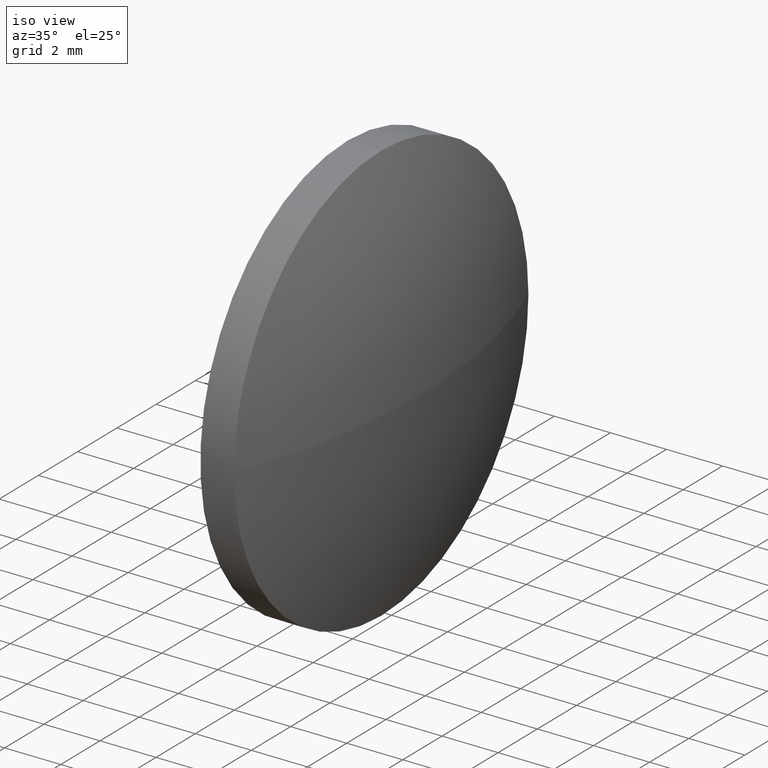
[diagram: clean part render]
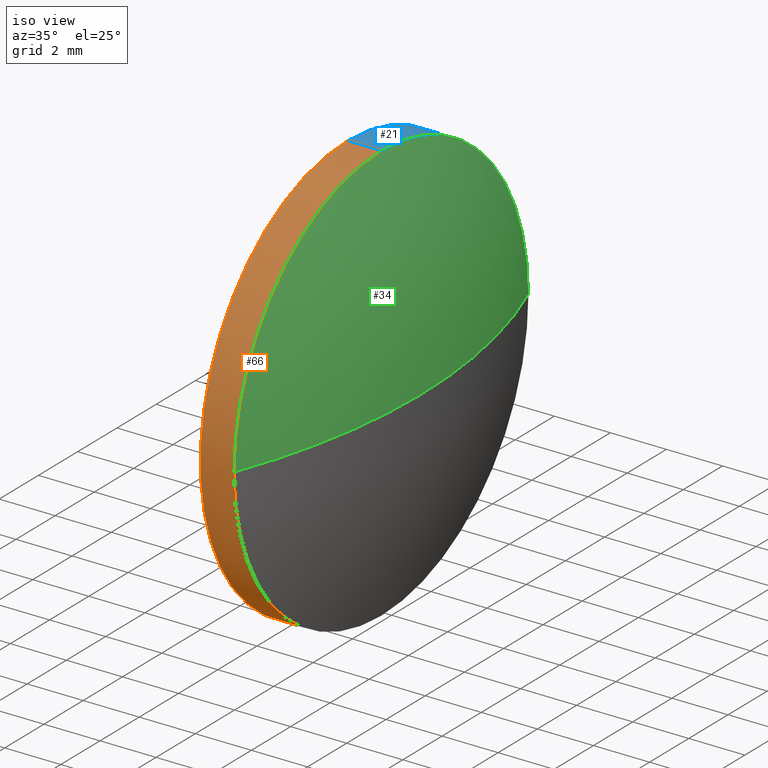
[diagram: same view with three faces highlighted in distinct colors, each labeled with its STEP entity id]
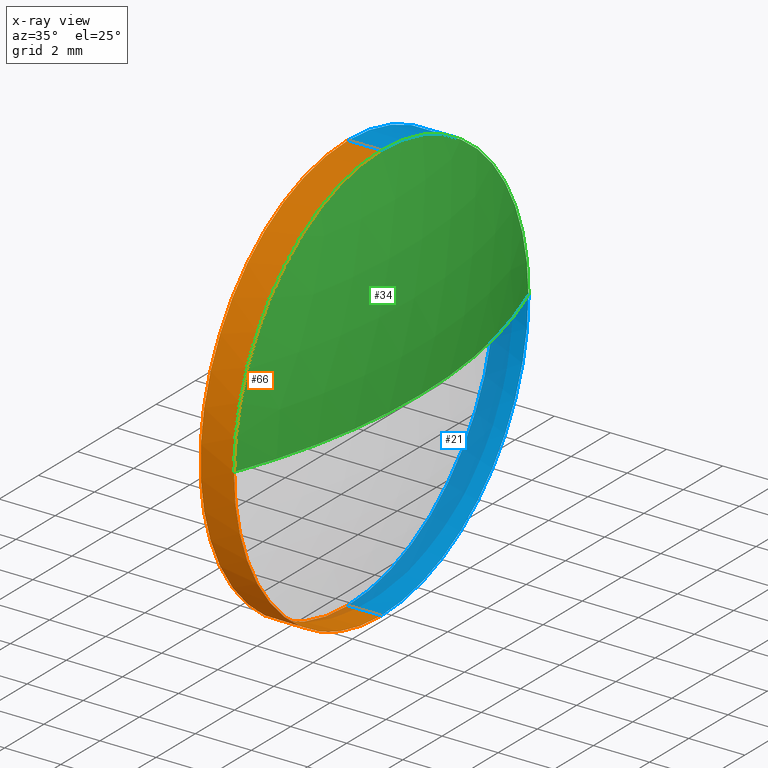
[diagram: x-ray of the same camera — body ghosted, the three highlighted faces saturated]
A machine part, iso view with three faces highlighted in distinct colors.
The next image is the same camera in x-ray (body ghosted, the three faces saturated) — at least one of them is partly hidden behind the body in this view.
Their STEP definitions:

[orange] entity #66 — the highlighted cylindrical surface (partial cylindrical patch) has radius 7.5 mm, axis along (-1, -0, -0).
#1 = AXIS2_PLACEMENT_3D ( 'NONE', #87, #11, #106 ) ;
#10 = AXIS2_PLACEMENT_3D ( 'NONE', #27, #132, #72 ) ;
#11 = DIRECTION ( 'NONE',  ( -1.000000000000000000, -0.0000000000000000000, -0.0000000000000000000 ) ) ;
#17 = EDGE_LOOP ( 'NONE', ( #97, #110, #148, #67, #95 ) ) ;
#23 = CARTESIAN_POINT ( 'NONE',  ( 366.1699605554130700, 373.7277991723684600, -9.184850993605163700E-016 ) ) ;
#25 = EDGE_CURVE ( 'NONE', #80, #117, #62, .T. ) ;
#26 = CARTESIAN_POINT ( 'NONE',  ( 362.1291484246796100, 381.2277991723684600, 0.0000000000000000000 ) ) ;
#27 = CARTESIAN_POINT ( 'NONE',  ( 366.1699605554130700, 381.2277991723684600, 0.0000000000000000000 ) ) ;
#32 = DIRECTION ( 'NONE',  ( -1.000000000000000000, -0.0000000000000000000, -0.0000000000000000000 ) ) ;
#33 = EDGE_CURVE ( 'NONE', #117, #165, #84, .T. ) ;
#35 = VECTOR ( 'NONE', #32, 1000.000000000000000 ) ;
#37 = CYLINDRICAL_SURFACE ( 'NONE', #162, 7.500000000000007100 ) ;
#39 = DIRECTION ( 'NONE',  ( -1.000000000000000000, -0.0000000000000000000, -0.0000000000000000000 ) ) ;
#44 = EDGE_CURVE ( 'NONE', #47, #165, #45, .T. ) ;
#45 = LINE ( 'NONE', #58, #164 ) ;
#47 = VERTEX_POINT ( 'NONE', #145 ) ;
#54 = VERTEX_POINT ( 'NONE', #23 ) ;
#55 = DIRECTION ( 'NONE',  ( -1.000000000000000000, -0.0000000000000000000, -0.0000000000000000000 ) ) ;
#57 = AXIS2_PLACEMENT_3D ( 'NONE', #185, #55, #173 ) ;
#58 = CARTESIAN_POINT ( 'NONE',  ( 362.1291484246796100, 381.2277991723684600, 7.500000000000007100 ) ) ;
#62 = LINE ( 'NONE', #82, #35 ) ;
#66 = ADVANCED_FACE ( 'NONE', ( #184 ), #37, .T. ) ;
#67 = ORIENTED_EDGE ( 'NONE', *, *, #44, .T. ) ;
#68 = DIRECTION ( 'NONE',  ( -1.000000000000000000, -0.0000000000000000000, -0.0000000000000000000 ) ) ;
#71 = CARTESIAN_POINT ( 'NONE',  ( 366.1699605554130700, 381.2277991723684600, -7.500000000000007100 ) ) ;
#72 = DIRECTION ( 'NONE',  ( 0.0000000000000000000, 0.0000000000000000000, 1.000000000000000000 ) ) ;
#80 = VERTEX_POINT ( 'NONE', #71 ) ;
#82 = CARTESIAN_POINT ( 'NONE',  ( 362.1291484246796100, 381.2277991723684600, -7.500000000000007100 ) ) ;
#84 = CIRCLE ( 'NONE', #57, 7.500000000000007100 ) ;
#87 = CARTESIAN_POINT ( 'NONE',  ( 366.1699605554130700, 381.2277991723684600, 0.0000000000000000000 ) ) ;
#95 = ORIENTED_EDGE ( 'NONE', *, *, #33, .F. ) ;
#97 = ORIENTED_EDGE ( 'NONE', *, *, #25, .F. ) ;
#106 = DIRECTION ( 'NONE',  ( 0.0000000000000000000, 0.0000000000000000000, 1.000000000000000000 ) ) ;
#110 = ORIENTED_EDGE ( 'NONE', *, *, #123, .T. ) ;
#114 = CIRCLE ( 'NONE', #10, 7.500000000000007100 ) ;
#117 = VERTEX_POINT ( 'NONE', #182 ) ;
#123 = EDGE_CURVE ( 'NONE', #80, #54, #128, .T. ) ;
#125 = EDGE_CURVE ( 'NONE', #54, #47, #114, .T. ) ;
#128 = CIRCLE ( 'NONE', #1, 7.500000000000007100 ) ;
#132 = DIRECTION ( 'NONE',  ( -1.000000000000000000, -0.0000000000000000000, -0.0000000000000000000 ) ) ;
#145 = CARTESIAN_POINT ( 'NONE',  ( 366.1699605554130700, 381.2277991723684600, 7.500000000000007100 ) ) ;
#148 = ORIENTED_EDGE ( 'NONE', *, *, #125, .T. ) ;
#153 = DIRECTION ( 'NONE',  ( 0.0000000000000000000, 0.0000000000000000000, 1.000000000000000000 ) ) ;
#157 = CARTESIAN_POINT ( 'NONE',  ( 364.9699605554130800, 381.2277991723684600, 7.500000000000007100 ) ) ;
#162 = AXIS2_PLACEMENT_3D ( 'NONE', #26, #39, #153 ) ;
#164 = VECTOR ( 'NONE', #68, 1000.000000000000000 ) ;
#165 = VERTEX_POINT ( 'NONE', #157 ) ;
#173 = DIRECTION ( 'NONE',  ( 0.0000000000000000000, 0.0000000000000000000, 1.000000000000000000 ) ) ;
#182 = CARTESIAN_POINT ( 'NONE',  ( 364.9699605554130800, 381.2277991723684600, -7.500000000000007100 ) ) ;
#184 = FACE_OUTER_BOUND ( 'NONE', #17, .T. ) ;
#185 = CARTESIAN_POINT ( 'NONE',  ( 364.9699605554130800, 381.2277991723684600, 0.0000000000000000000 ) ) ;

[blue] entity #21 — the highlighted cylindrical surface (partial cylindrical patch) has radius 7.5 mm, axis along (-1, -0, -0).
#6 = AXIS2_PLACEMENT_3D ( 'NONE', #116, #22, #13 ) ;
#7 = DIRECTION ( 'NONE',  ( -1.000000000000000000, -0.0000000000000000000, -0.0000000000000000000 ) ) ;
#8 = EDGE_LOOP ( 'NONE', ( #150, #41, #133, #101, #130 ) ) ;
#13 = DIRECTION ( 'NONE',  ( 0.0000000000000000000, 0.0000000000000000000, 1.000000000000000000 ) ) ;
#20 = EDGE_CURVE ( 'NONE', #165, #117, #122, .T. ) ;
#21 = ADVANCED_FACE ( 'NONE', ( #74 ), #98, .T. ) ;
#22 = DIRECTION ( 'NONE',  ( -1.000000000000000000, -0.0000000000000000000, -0.0000000000000000000 ) ) ;
#25 = EDGE_CURVE ( 'NONE', #80, #117, #62, .T. ) ;
#28 = CIRCLE ( 'NONE', #138, 7.500000000000007100 ) ;
#31 = EDGE_CURVE ( 'NONE', #47, #107, #28, .T. ) ;
#32 = DIRECTION ( 'NONE',  ( -1.000000000000000000, -0.0000000000000000000, -0.0000000000000000000 ) ) ;
#35 = VECTOR ( 'NONE', #32, 1000.000000000000000 ) ;
#41 = ORIENTED_EDGE ( 'NONE', *, *, #25, .T. ) ;
#44 = EDGE_CURVE ( 'NONE', #47, #165, #45, .T. ) ;
#45 = LINE ( 'NONE', #58, #164 ) ;
#47 = VERTEX_POINT ( 'NONE', #145 ) ;
#48 = AXIS2_PLACEMENT_3D ( 'NONE', #179, #7, #65 ) ;
#53 = CARTESIAN_POINT ( 'NONE',  ( 366.1699605554130700, 381.2277991723684600, 0.0000000000000000000 ) ) ;
#58 = CARTESIAN_POINT ( 'NONE',  ( 362.1291484246796100, 381.2277991723684600, 7.500000000000007100 ) ) ;
#62 = LINE ( 'NONE', #82, #35 ) ;
#65 = DIRECTION ( 'NONE',  ( 0.0000000000000000000, 0.0000000000000000000, 1.000000000000000000 ) ) ;
#68 = DIRECTION ( 'NONE',  ( -1.000000000000000000, -0.0000000000000000000, -0.0000000000000000000 ) ) ;
#69 = DIRECTION ( 'NONE',  ( 0.0000000000000000000, 0.0000000000000000000, 1.000000000000000000 ) ) ;
#71 = CARTESIAN_POINT ( 'NONE',  ( 366.1699605554130700, 381.2277991723684600, -7.500000000000007100 ) ) ;
#74 = FACE_OUTER_BOUND ( 'NONE', #8, .T. ) ;
#78 = CIRCLE ( 'NONE', #6, 7.500000000000007100 ) ;
#80 = VERTEX_POINT ( 'NONE', #71 ) ;
#82 = CARTESIAN_POINT ( 'NONE',  ( 362.1291484246796100, 381.2277991723684600, -7.500000000000007100 ) ) ;
#96 = AXIS2_PLACEMENT_3D ( 'NONE', #143, #113, #167 ) ;
#98 = CYLINDRICAL_SURFACE ( 'NONE', #96, 7.500000000000007100 ) ;
#100 = EDGE_CURVE ( 'NONE', #107, #80, #78, .T. ) ;
#101 = ORIENTED_EDGE ( 'NONE', *, *, #44, .F. ) ;
#107 = VERTEX_POINT ( 'NONE', #171 ) ;
#113 = DIRECTION ( 'NONE',  ( -1.000000000000000000, -0.0000000000000000000, -0.0000000000000000000 ) ) ;
#116 = CARTESIAN_POINT ( 'NONE',  ( 366.1699605554130700, 381.2277991723684600, 0.0000000000000000000 ) ) ;
#117 = VERTEX_POINT ( 'NONE', #182 ) ;
#122 = CIRCLE ( 'NONE', #48, 7.500000000000007100 ) ;
#130 = ORIENTED_EDGE ( 'NONE', *, *, #31, .T. ) ;
#133 = ORIENTED_EDGE ( 'NONE', *, *, #20, .F. ) ;
#138 = AXIS2_PLACEMENT_3D ( 'NONE', #53, #155, #69 ) ;
#143 = CARTESIAN_POINT ( 'NONE',  ( 362.1291484246796100, 381.2277991723684600, 0.0000000000000000000 ) ) ;
#145 = CARTESIAN_POINT ( 'NONE',  ( 366.1699605554130700, 381.2277991723684600, 7.500000000000007100 ) ) ;
#150 = ORIENTED_EDGE ( 'NONE', *, *, #100, .T. ) ;
#155 = DIRECTION ( 'NONE',  ( -1.000000000000000000, -0.0000000000000000000, -0.0000000000000000000 ) ) ;
#157 = CARTESIAN_POINT ( 'NONE',  ( 364.9699605554130800, 381.2277991723684600, 7.500000000000007100 ) ) ;
#164 = VECTOR ( 'NONE', #68, 1000.000000000000000 ) ;
#165 = VERTEX_POINT ( 'NONE', #157 ) ;
#167 = DIRECTION ( 'NONE',  ( 0.0000000000000000000, 0.0000000000000000000, 1.000000000000000000 ) ) ;
#171 = CARTESIAN_POINT ( 'NONE',  ( 366.1699605554130700, 388.7277991723685200, 0.0000000000000000000 ) ) ;
#179 = CARTESIAN_POINT ( 'NONE',  ( 364.9699605554130800, 381.2277991723684600, 0.0000000000000000000 ) ) ;
#182 = CARTESIAN_POINT ( 'NONE',  ( 364.9699605554130800, 381.2277991723684600, -7.500000000000007100 ) ) ;

[green] entity #34 — the highlighted spherical surface has radius 20.7893 mm.
#3 = EDGE_CURVE ( 'NONE', #139, #54, #163, .T. ) ;
#9 = DIRECTION ( 'NONE',  ( -0.0000000000000000000, 0.0000000000000000000, -1.000000000000000000 ) ) ;
#10 = AXIS2_PLACEMENT_3D ( 'NONE', #27, #132, #72 ) ;
#18 = CARTESIAN_POINT ( 'NONE',  ( 346.7806748411273900, 381.2277991723684600, 0.0000000000000000000 ) ) ;
#23 = CARTESIAN_POINT ( 'NONE',  ( 366.1699605554130700, 373.7277991723684600, -9.184850993605163700E-016 ) ) ;
#27 = CARTESIAN_POINT ( 'NONE',  ( 366.1699605554130700, 381.2277991723684600, 0.0000000000000000000 ) ) ;
#28 = CIRCLE ( 'NONE', #138, 7.500000000000007100 ) ;
#31 = EDGE_CURVE ( 'NONE', #47, #107, #28, .T. ) ;
#34 = ADVANCED_FACE ( 'NONE', ( #177 ), #77, .T. ) ;
#36 = DIRECTION ( 'NONE',  ( 0.0000000000000000000, 1.000000000000000000, 1.224646799147353000E-016 ) ) ;
#47 = VERTEX_POINT ( 'NONE', #145 ) ;
#51 = CIRCLE ( 'NONE', #149, 20.78928571428567600 ) ;
#53 = CARTESIAN_POINT ( 'NONE',  ( 366.1699605554130700, 381.2277991723684600, 0.0000000000000000000 ) ) ;
#54 = VERTEX_POINT ( 'NONE', #23 ) ;
#69 = DIRECTION ( 'NONE',  ( 0.0000000000000000000, 0.0000000000000000000, 1.000000000000000000 ) ) ;
#70 = DIRECTION ( 'NONE',  ( 1.000000000000000000, 0.0000000000000000000, 0.0000000000000000000 ) ) ;
#72 = DIRECTION ( 'NONE',  ( 0.0000000000000000000, 0.0000000000000000000, 1.000000000000000000 ) ) ;
#77 = SPHERICAL_SURFACE ( 'NONE', #109, 20.78928571428567200 ) ;
#83 = EDGE_CURVE ( 'NONE', #139, #107, #51, .T. ) ;
#85 = DIRECTION ( 'NONE',  ( -0.0000000000000000000, 0.0000000000000000000, 1.000000000000000000 ) ) ;
#89 = EDGE_LOOP ( 'NONE', ( #126, #115, #104, #136 ) ) ;
#102 = CARTESIAN_POINT ( 'NONE',  ( 346.7806748411273900, 381.2277991723684600, 0.0000000000000000000 ) ) ;
#104 = ORIENTED_EDGE ( 'NONE', *, *, #31, .F. ) ;
#105 = CARTESIAN_POINT ( 'NONE',  ( 367.5699605554131000, 381.2277991723684600, 0.0000000000000000000 ) ) ;
#107 = VERTEX_POINT ( 'NONE', #171 ) ;
#109 = AXIS2_PLACEMENT_3D ( 'NONE', #18, #9, #168 ) ;
#114 = CIRCLE ( 'NONE', #10, 7.500000000000007100 ) ;
#115 = ORIENTED_EDGE ( 'NONE', *, *, #83, .T. ) ;
#125 = EDGE_CURVE ( 'NONE', #54, #47, #114, .T. ) ;
#126 = ORIENTED_EDGE ( 'NONE', *, *, #3, .F. ) ;
#132 = DIRECTION ( 'NONE',  ( -1.000000000000000000, -0.0000000000000000000, -0.0000000000000000000 ) ) ;
#136 = ORIENTED_EDGE ( 'NONE', *, *, #125, .F. ) ;
#138 = AXIS2_PLACEMENT_3D ( 'NONE', #53, #155, #69 ) ;
#139 = VERTEX_POINT ( 'NONE', #105 ) ;
#142 = AXIS2_PLACEMENT_3D ( 'NONE', #102, #166, #36 ) ;
#144 = CARTESIAN_POINT ( 'NONE',  ( 346.7806748411273900, 381.2277991723684600, 0.0000000000000000000 ) ) ;
#145 = CARTESIAN_POINT ( 'NONE',  ( 366.1699605554130700, 381.2277991723684600, 7.500000000000007100 ) ) ;
#149 = AXIS2_PLACEMENT_3D ( 'NONE', #144, #85, #70 ) ;
#155 = DIRECTION ( 'NONE',  ( -1.000000000000000000, -0.0000000000000000000, -0.0000000000000000000 ) ) ;
#163 = CIRCLE ( 'NONE', #142, 20.78928571428567600 ) ;
#166 = DIRECTION ( 'NONE',  ( 0.0000000000000000000, 1.224646799147353200E-016, -1.000000000000000000 ) ) ;
#168 = DIRECTION ( 'NONE',  ( 0.0000000000000000000, 1.000000000000000000, 0.0000000000000000000 ) ) ;
#171 = CARTESIAN_POINT ( 'NONE',  ( 366.1699605554130700, 388.7277991723685200, 0.0000000000000000000 ) ) ;
#177 = FACE_OUTER_BOUND ( 'NONE', #89, .T. ) ;